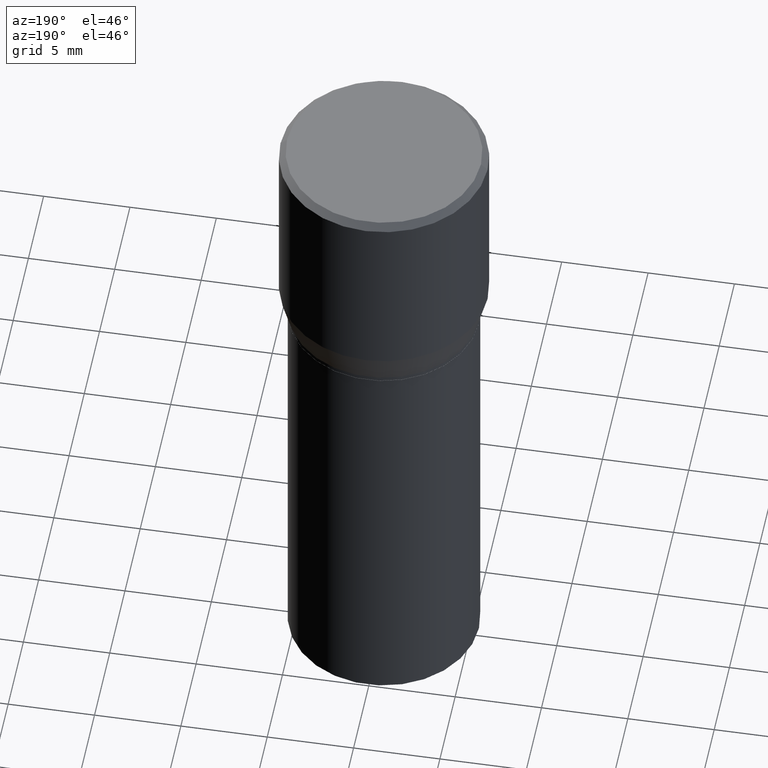
[diagram: clean part render]
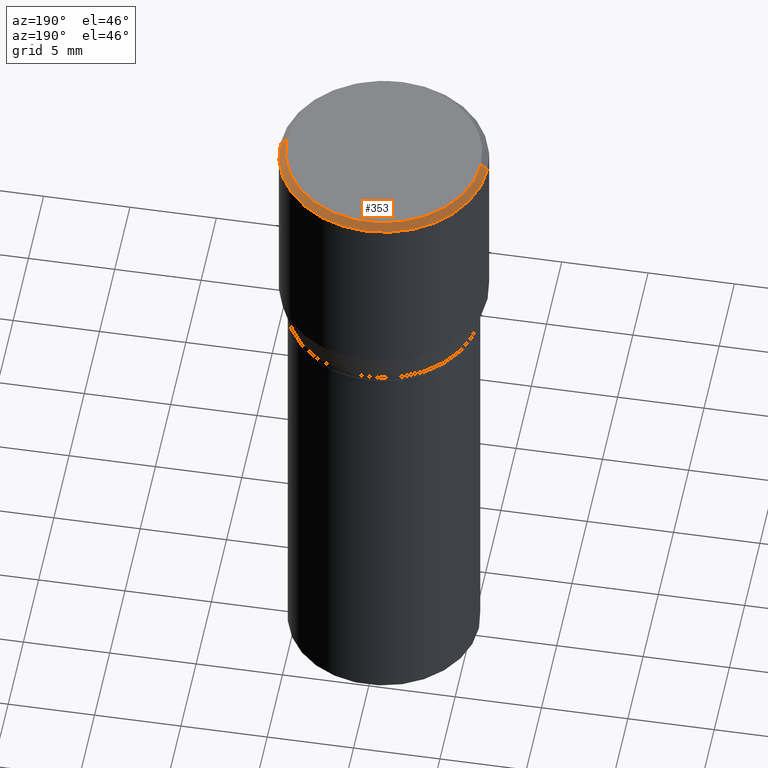
[diagram: same view with one face highlighted and labeled with its STEP entity id]
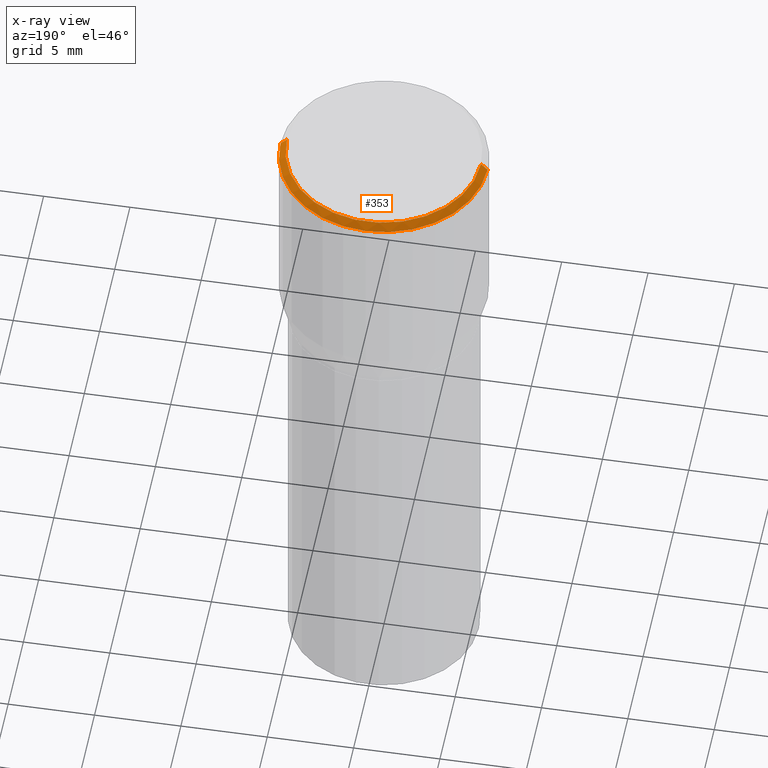
[diagram: x-ray of the same camera — body ghosted, the highlighted face saturated]
A machine part, auxiliary view. The second image highlights one B-rep face of the part: STEP entity #353.
The next image is the same camera in x-ray: the body ghosted, the highlighted face saturated — about 0% of this face is hidden behind the body in this view.
In plain terms, the highlighted conical surface has half-angle 45 deg.
Its self-contained STEP definition (entity closure, byte-faithful):
#3 = CONICAL_SURFACE ( 'NONE', #356, 0.2361999999999999933, 0.7853981633974459475 ) ;
#14 = DIRECTION ( 'NONE',  ( -2.445468806185136597E-29, 3.491481338843145583E-15, 1.000000000000000000 ) ) ;
#18 = VERTEX_POINT ( 'NONE', #164 ) ;
#26 = EDGE_CURVE ( 'NONE', #142, #440, #242, .T. ) ;
#38 = AXIS2_PLACEMENT_3D ( 'NONE', #382, #14, #194 ) ;
#42 = FACE_OUTER_BOUND ( 'NONE', #92, .T. ) ;
#43 = CARTESIAN_POINT ( 'NONE',  ( 3.668203209277705088E-31, -5.237222008264718399E-17, -0.01499999999999999944 ) ) ;
#57 = AXIS2_PLACEMENT_3D ( 'NONE', #43, #190, #212 ) ;
#61 = CARTESIAN_POINT ( 'NONE',  ( 3.668203209277705088E-31, -5.237222008264718399E-17, -0.01499999999999999944 ) ) ;
#85 = EDGE_CURVE ( 'NONE', #18, #340, #239, .T. ) ;
#92 = EDGE_LOOP ( 'NONE', ( #418, #451, #230, #335 ) ) ;
#101 = CIRCLE ( 'NONE', #57, 0.2361999999999999933 ) ;
#136 = DIRECTION ( 'NONE',  ( 0.7071067811865459074, -7.319954787623251312E-15, -0.7071067811865492381 ) ) ;
#142 = VERTEX_POINT ( 'NONE', #217 ) ;
#164 = CARTESIAN_POINT ( 'NONE',  ( 0.2212000000000000077, -1.595182002131672613E-15, 4.701447564593453826E-17 ) ) ;
#190 = DIRECTION ( 'NONE',  ( -2.445468806185136597E-29, 3.491481338843145583E-15, 1.000000000000000000 ) ) ;
#192 = CIRCLE ( 'NONE', #38, 0.2212000000000000077 ) ;
#194 = DIRECTION ( 'NONE',  ( 1.000000000000000000, -6.982962677686267499E-15, 4.877828720335458505E-29 ) ) ;
#212 = DIRECTION ( 'NONE',  ( 1.000000000000000000, -6.982962677686266711E-15, 0.000000000000000000 ) ) ;
#217 = CARTESIAN_POINT ( 'NONE',  ( -0.2212000000000000077, 1.570817454345525709E-15, 4.701447564591266586E-17 ) ) ;
#230 = ORIENTED_EDGE ( 'NONE', *, *, #337, .T. ) ;
#239 = LINE ( 'NONE', #305, #424 ) ;
#242 = LINE ( 'NONE', #425, #399 ) ;
#282 = CARTESIAN_POINT ( 'NONE',  ( -0.2361999999999999933, 8.973183152936629998E-16, -0.01499999999999999944 ) ) ;
#283 = CARTESIAN_POINT ( 'NONE',  ( 0.2361999999999999933, -1.701748004552143407E-15, -0.01499999999999999944 ) ) ;
#294 = EDGE_CURVE ( 'NONE', #18, #142, #192, .T. ) ;
#305 = CARTESIAN_POINT ( 'NONE',  ( 0.2361999999999999933, -1.672821847156282947E-15, -0.01499999999999999944 ) ) ;
#335 = ORIENTED_EDGE ( 'NONE', *, *, #26, .F. ) ;
#337 = EDGE_CURVE ( 'NONE', #340, #440, #101, .T. ) ;
#340 = VERTEX_POINT ( 'NONE', #283 ) ;
#353 = ADVANCED_FACE ( 'NONE', ( #42 ), #3, .T. ) ;
#356 = AXIS2_PLACEMENT_3D ( 'NONE', #61, #359, #403 ) ;
#359 = DIRECTION ( 'NONE',  ( 2.445468806185136597E-29, -3.491481338843145583E-15, -1.000000000000000000 ) ) ;
#382 = CARTESIAN_POINT ( 'NONE',  ( -1.149724336312568861E-45, 1.641501643732376549E-31, 4.701447564592356200E-17 ) ) ;
#394 = DIRECTION ( 'NONE',  ( -0.7071067811865459074, 2.468850131082239706E-15, -0.7071067811865492381 ) ) ;
#399 = VECTOR ( 'NONE', #394, 39.37007874015748143 ) ;
#403 = DIRECTION ( 'NONE',  ( -1.000000000000000000, 6.982962677686266711E-15, 0.000000000000000000 ) ) ;
#418 = ORIENTED_EDGE ( 'NONE', *, *, #294, .F. ) ;
#424 = VECTOR ( 'NONE', #136, 39.37007874015748143 ) ;
#425 = CARTESIAN_POINT ( 'NONE',  ( -0.2361999999999999933, 1.597003564386848854E-15, -0.01499999999999999944 ) ) ;
#440 = VERTEX_POINT ( 'NONE', #282 ) ;
#451 = ORIENTED_EDGE ( 'NONE', *, *, #85, .T. ) ;